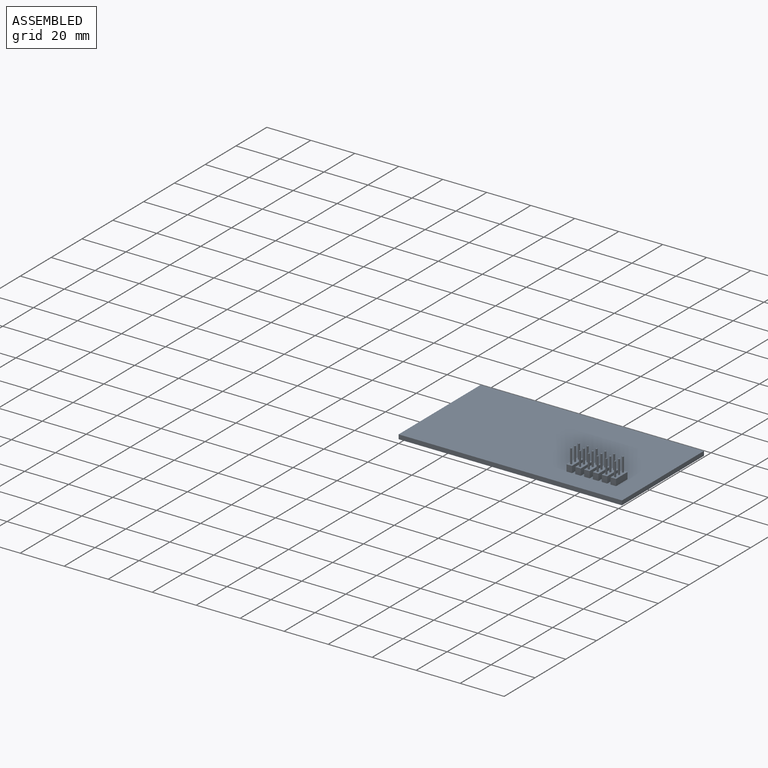
[diagram: assembled view]
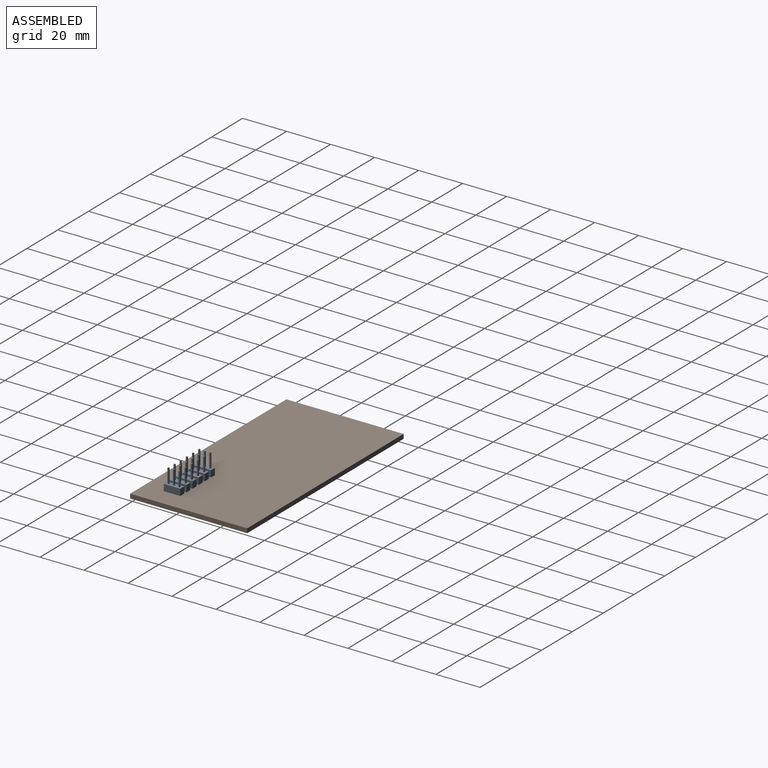
[diagram: assembled view, second angle]
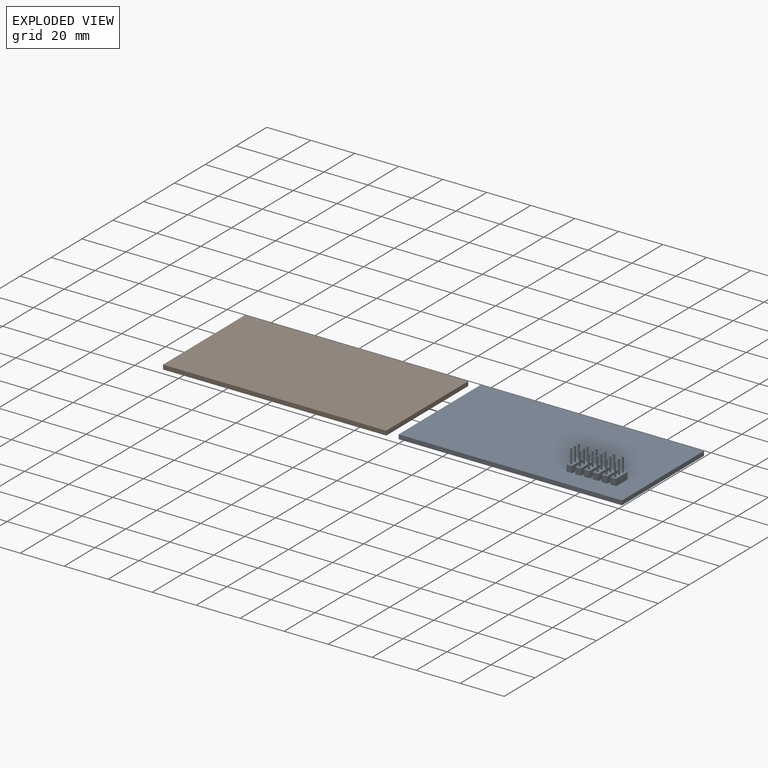
[diagram: exploded view]
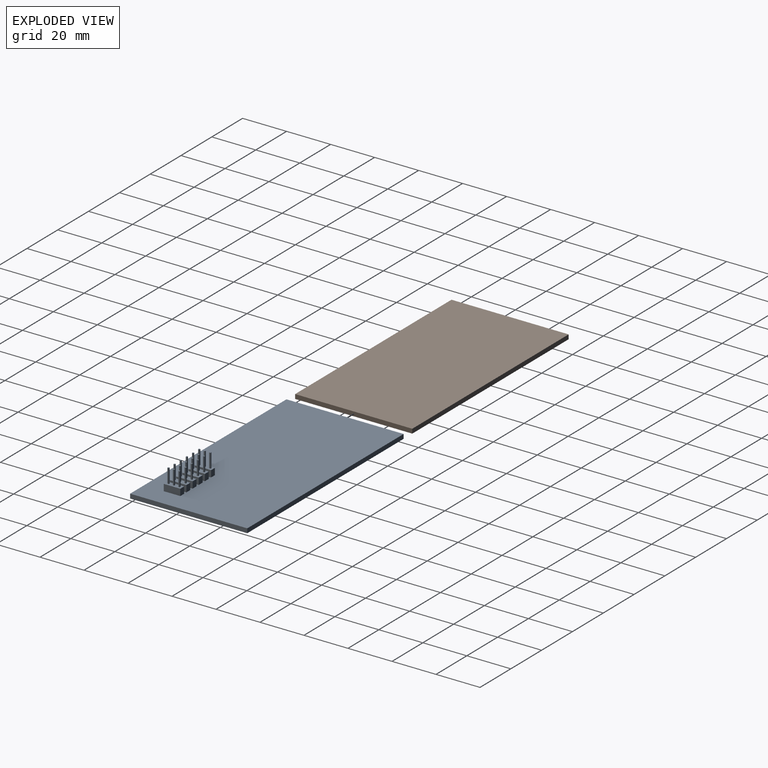
[diagram: exploded view, second angle]
FCSTD DOCUMENT  (FreeCAD 0.21R33771 (Git))
Label: jrobot-pcb-assembly
License: All rights reserved
LicenseURL: http://en.wikipedia.org/wiki/All_rights_reserved
objects: PartDesign::CoordinateSystem×32, App::Link×31, App::DocumentObjectGroup×3, App::Part×2, App::FeaturePython×1, Sketcher::SketchObject×1, PartDesign::Pad×1, PartDesign::Body×1, Spreadsheet::Sheet×1
note: 36 computed .brp shape members not serialized (recipe doc carries the construction recipe); baked Part::Feature solids carry a one-line shape summary decoded from their .brp
EXTERNAL_REF file=standard-parts.FCStd obj=LCS_Dupont_MalePCB_3pin_Origin003
EXTERNAL_REF file=standard-parts.FCStd obj=Part062
EXTERNAL_REF file=standard-parts.FCStd obj=LCS_Dupont_MalePCB_3pin_Origin004
EXTERNAL_REF file=standard-parts.FCStd obj=Part063
EXTERNAL_REF file=standard-parts.FCStd obj=LCS_Dupont_MalePCB_3pin_Origin006
EXTERNAL_REF file=standard-parts.FCStd obj=Part067
EXTERNAL_REF file=standard-parts.FCStd obj=LCS_Dupont_MalePCB_3pin_Origin
EXTERNAL_REF file=standard-parts.FCStd obj=Part051
EXTERNAL_REF file=standard-parts.FCStd obj=LCS_Dupont_MalePCB_3pin_Origin005
EXTERNAL_REF file=standard-parts.FCStd obj=Part066

FEATURE [PartDesign::CoordinateSystem] LCS_Origin
  AttacherType = Attacher::AttachEngine3D
  MapMode = 2
  Support = -> [X_Axis]
FEATURE [App::DocumentObjectGroup] Constraints
FEATURE [App::FeaturePython] Variables  # WARN: FeaturePython — macro-defined, semantics opaque (R4)
  Type = App::PropertyContainer
FEATURE [App::DocumentObjectGroup] Configurations
FEATURE [Sketcher::SketchObject] Sketch
  FullyConstrained = true
  MapMode = 5
  Support = -> [XY_Plane002]
  sketch-geometry (4):
    g0: LineSegment StartX=0 StartY=53.25 StartZ=0 EndX=101.5 EndY=53.25 EndZ=0
    g1: LineSegment StartX=101.5 StartY=53.25 StartZ=0 EndX=101.5 EndY=0 EndZ=0
    g2: LineSegment StartX=101.5 StartY=0 StartZ=0 EndX=0 EndY=0 EndZ=0
    g3: LineSegment StartX=0 StartY=0 StartZ=0 EndX=0 EndY=53.25 EndZ=0
  constraints (12):
    c: Coincident(g0,g1)
    c: Coincident(g1,g2)
    c: Coincident(g2,g3)
    c: Coincident(g3,g0)
    c: Horizontal(g0)
    c: Horizontal(g2)
    c: Vertical(g1)
    c: Vertical(g3)
    c: PointOnObject(g0,g-2)
    c: PointOnObject(g1,g-1)
    c: DistanceY(g1,g1) = 53.25
    c: DistanceX(g0,g0) = 101.5
FEATURE [PartDesign::Pad] Pad  label="PAD_Electronics_uCNCShield_Body"
  Direction = (0,0,1)
  Length = 2
  Length2 = 10
  Profile = -> Sketch
  ReferenceAxis = -> Sketch [N_Axis]
  Type = 0
FEATURE [PartDesign::Body] Body  label="B_Electronics_uCNCShield"
  Group = -> [Sketch,Pad]
  Origin = -> Origin002
  Tip = -> Pad
FEATURE [PartDesign::CoordinateSystem] LCS_Origin001  label="LCS_Electronics_uCNCShield_Origin"
  AttacherType = Attacher::AttachEngine3D
FEATURE [PartDesign::CoordinateSystem] LCS_Electronics_uCNCShield_P2
  AttacherType = Attacher::AttachEngine3D
  Placement = pos=(26.5,1,0) rot=(0,0,1;0rad)
FEATURE [PartDesign::CoordinateSystem] LCS_Electronics_uCNCShield_P3
  AttacherType = Attacher::AttachEngine3D
  Placement = pos=(49.5,1,0) rot=(0,0,1;0rad)
FEATURE [PartDesign::CoordinateSystem] LCS_Electronics_uCNCShield_P4
  AttacherType = Attacher::AttachEngine3D
  Placement = pos=(72.55,1,0) rot=(0,0,1;0rad)
FEATURE [PartDesign::CoordinateSystem] LCS_Electronics_uCNCShield_P5
  AttacherType = Attacher::AttachEngine3D
  Placement = pos=(17.4,49.9,0) rot=(0,0,1;0rad)
FEATURE [PartDesign::CoordinateSystem] LCS_Electronics_uCNCShield_P6
  AttacherType = Attacher::AttachEngine3D
  Placement = pos=(44.2,49.9,0) rot=(0,0,1;0rad)
FEATURE [PartDesign::CoordinateSystem] LCS_Electronics_uCNCShield_P7
  AttacherType = Attacher::AttachEngine3D
  Placement = pos=(66.7,49.9,0) rot=(0,0,1;0rad)
FEATURE [PartDesign::CoordinateSystem] LCS_Electronics_uCNCShield_P1
  AttacherType = Attacher::AttachEngine3D
  Placement = pos=(93.5,52.4,0) rot=(0,0,1;0rad)
  expr: .Placement.Base.y = 49.9 mm + 2.5 mm
FEATURE [PartDesign::CoordinateSystem] LCS_Electronics_uCNCShield_JSERVO0
  AttacherType = Attacher::AttachEngine3D
  Placement = pos=(10,35,2) rot=(0,0,1;0rad)
FEATURE [App::Link] P_Electronics_uCNCShield  label="P_Electronics_uCNCShield001"
  AttachedBy = #LCS_Origin001
  AttachedTo = Parent Assembly#LCS_Origin
  LinkedObject = -> Part
  SolverId = Asm4EE
  expr: Placement = LCS_Origin.Placement * AttachmentOffset * LCS_Origin001.Placement ^ -1
FEATURE [App::Link] P_Dupont_MalePCB_8pin  label="P_P2"
  AttachedBy = #LCS_Dupont_MalePCB_3pin_Origin003
  AttachedTo = P_Electronics_uCNCShield#LCS_Electronics_uCNCShield_P2
  AttachmentOffset = pos=(0,0,0) rot=(-0.707107,-0.707107,0;3.14159rad)
  LinkPlacement = pos=(27.75,2.25,-2e-16) rot=(-0.707107,-0.707107,0;3.14159rad)
  LinkedObject = -> <external standard-parts.FCStd>#Part062
  Placement = pos=(27.75,2.25,-2e-16) rot=(-0.707107,-0.707107,0;3.14159rad)
  SolverId = Asm4EE
  expr: Placement = P_Electronics_uCNCShield.Placement * LCS_Electronics_uCNCShield_P2.Placement * AttachmentOffset * standard_parts#LCS_Dupont_MalePCB_3pin_Origin003.Placement ^ -1
FEATURE [App::Link] P_Dupont_MalePCB_8pin_2  label="P_P3"
  AttachedBy = #LCS_Dupont_MalePCB_3pin_Origin003
  AttachedTo = P_Electronics_uCNCShield#LCS_Electronics_uCNCShield_P3
  AttachmentOffset = pos=(0,0,0) rot=(-0.707107,-0.707107,0;3.14159rad)
  LinkPlacement = pos=(50.75,2.25,-2e-16) rot=(-0.707107,-0.707107,0;3.14159rad)
  LinkedObject = -> <external standard-parts.FCStd>#Part062
  Placement = pos=(50.75,2.25,-2e-16) rot=(-0.707107,-0.707107,0;3.14159rad)
  SolverId = Asm4EE
  expr: Placement = P_Electronics_uCNCShield.Placement * LCS_Electronics_uCNCShield_P3.Placement * AttachmentOffset * standard_parts#LCS_Dupont_MalePCB_3pin_Origin003.Placement ^ -1
FEATURE [App::Link] P_Dupont_MalePCB_8pin_1  label="P_P4"
  AttachedBy = #LCS_Dupont_MalePCB_3pin_Origin003
  AttachedTo = P_Electronics_uCNCShield#LCS_Electronics_uCNCShield_P4
  AttachmentOffset = pos=(0,0,0) rot=(-0.707107,-0.707107,0;3.14159rad)
  LinkPlacement = pos=(73.8,2.25,-2e-16) rot=(-0.707107,-0.707107,0;3.14159rad)
  LinkedObject = -> <external standard-parts.FCStd>#Part062
  Placement = pos=(73.8,2.25,-2e-16) rot=(-0.707107,-0.707107,0;3.14159rad)
  SolverId = Asm4EE
  expr: Placement = P_Electronics_uCNCShield.Placement * LCS_Electronics_uCNCShield_P4.Placement * AttachmentOffset * standard_parts#LCS_Dupont_MalePCB_3pin_Origin003.Placement ^ -1
FEATURE [App::Link] P_Dupont_MalePCB_10pin  label="P_P5"
  AttachedBy = #LCS_Dupont_MalePCB_3pin_Origin004
  AttachedTo = P_Electronics_uCNCShield#LCS_Electronics_uCNCShield_P5
  AttachmentOffset = pos=(0,0,0) rot=(-0.707107,-0.707107,0;3.14159rad)
  LinkPlacement = pos=(18.65,51.15,-2e-16) rot=(-0.707107,-0.707107,0;3.14159rad)
  LinkedObject = -> <external standard-parts.FCStd>#Part063
  Placement = pos=(18.65,51.15,-2e-16) rot=(-0.707107,-0.707107,0;3.14159rad)
  SolverId = Asm4EE
  expr: Placement = P_Electronics_uCNCShield.Placement * LCS_Electronics_uCNCShield_P5.Placement * AttachmentOffset * standard_parts#LCS_Dupont_MalePCB_3pin_Origin004.Placement ^ -1
FEATURE [App::Link] P_Dupont_MalePCB_8pin001  label="P_P6"
  AttachedBy = #LCS_Dupont_MalePCB_3pin_Origin003
  AttachedTo = P_Electronics_uCNCShield#LCS_Electronics_uCNCShield_P6
  AttachmentOffset = pos=(0,0,0) rot=(-0.707107,-0.707107,0;3.14159rad)
  LinkPlacement = pos=(45.45,51.15,-2e-16) rot=(-0.707107,-0.707107,0;3.14159rad)
  LinkedObject = -> <external standard-parts.FCStd>#Part062
  Placement = pos=(45.45,51.15,-2e-16) rot=(-0.707107,-0.707107,0;3.14159rad)
  SolverId = Asm4EE
  expr: Placement = P_Electronics_uCNCShield.Placement * LCS_Electronics_uCNCShield_P6.Placement * AttachmentOffset * standard_parts#LCS_Dupont_MalePCB_3pin_Origin003.Placement ^ -1
FEATURE [App::Link] P_Dupont_MalePCB_1  label="P_P7"
  AttachedBy = #LCS_Dupont_MalePCB_3pin_Origin003
  AttachedTo = P_Electronics_uCNCShield#LCS_Electronics_uCNCShield_P7
  AttachmentOffset = pos=(0,0,0) rot=(-0.707107,-0.707107,0;3.14159rad)
  LinkPlacement = pos=(67.95,51.15,-2e-16) rot=(-0.707107,-0.707107,0;3.14159rad)
  LinkedObject = -> <external standard-parts.FCStd>#Part062
  Placement = pos=(67.95,51.15,-2e-16) rot=(-0.707107,-0.707107,0;3.14159rad)
  SolverId = Asm4EE
  expr: Placement = P_Electronics_uCNCShield.Placement * LCS_Electronics_uCNCShield_P7.Placement * AttachmentOffset * standard_parts#LCS_Dupont_MalePCB_3pin_Origin003.Placement ^ -1
FEATURE [App::Link] P_Dupont_MalePCB_18x2pin  label="P_J1"
  AttachedBy = #LCS_Dupont_MalePCB_3pin_Origin006
  AttachedTo = P_Electronics_uCNCShield#LCS_Electronics_uCNCShield_P1
  AttachmentOffset = pos=(0,0,0) rot=(1,0,0;3.14159rad)
  LinkPlacement = pos=(94.75,51.15,2e-16) rot=(1,0,0;3.14159rad)
  LinkedObject = -> <external standard-parts.FCStd>#Part067
  Placement = pos=(94.75,51.15,2e-16) rot=(1,0,0;3.14159rad)
  SolverId = Asm4EE
  expr: Placement = P_Electronics_uCNCShield.Placement * LCS_Electronics_uCNCShield_P1.Placement * AttachmentOffset * standard_parts#LCS_Dupont_MalePCB_3pin_Origin006.Placement ^ -1
FEATURE [PartDesign::CoordinateSystem] LCS_Electronics_uCNCShield_JSERVO001  label="LCS_Electronics_uCNCShield_JSERVO1"
  AttacherType = Attacher::AttachEngine3D
  Placement = pos=(15,35,2) rot=(0,0,1;0rad)
FEATURE [PartDesign::CoordinateSystem] LCS_Electronics_uCNCShield_JSERVO002  label="LCS_Electronics_uCNCShield_JSERVO2"
  AttacherType = Attacher::AttachEngine3D
  Placement = pos=(20,35,2) rot=(0,0,1;0rad)
FEATURE [App::Link] P_Dupont_MalePCB_3pin  label="P_JSERVO0"
  AttachedBy = #LCS_Dupont_MalePCB_3pin_Origin
  AttachedTo = P_Electronics_uCNCShield#LCS_Electronics_uCNCShield_JSERVO0
  LinkPlacement = pos=(11.25,36.25,2) rot=(0,0,1;0rad)
  LinkedObject = -> <external standard-parts.FCStd>#Part051
  Placement = pos=(11.25,36.25,2) rot=(0,0,1;0rad)
  SolverId = Asm4EE
  expr: Placement = P_Electronics_uCNCShield.Placement * LCS_Electronics_uCNCShield_JSERVO0.Placement * AttachmentOffset * standard_parts#LCS_Dupont_MalePCB_3pin_Origin.Placement ^ -1
FEATURE [App::Link] P_Dupont_MalePCB_3pin_2  label="P_JSERVO1"
  AttachedBy = #LCS_Dupont_MalePCB_3pin_Origin
  AttachedTo = P_Electronics_uCNCShield#LCS_Electronics_uCNCShield_JSERVO001
  LinkPlacement = pos=(16.25,36.25,2) rot=(0,0,1;0rad)
  LinkedObject = -> <external standard-parts.FCStd>#Part051
  Placement = pos=(16.25,36.25,2) rot=(0,0,1;0rad)
  SolverId = Asm4EE
  expr: Placement = P_Electronics_uCNCShield.Placement * LCS_Electronics_uCNCShield_JSERVO001.Placement * AttachmentOffset * standard_parts#LCS_Dupont_MalePCB_3pin_Origin.Placement ^ -1
FEATURE [App::Link] P_Dupont_MalePCB_3pin_1  label="P_JSERVO2"
  AttachedBy = #LCS_Dupont_MalePCB_3pin_Origin
  AttachedTo = P_Electronics_uCNCShield#LCS_Electronics_uCNCShield_JSERVO002
  LinkPlacement = pos=(21.25,36.25,2) rot=(0,0,1;0rad)
  LinkedObject = -> <external standard-parts.FCStd>#Part051
  Placement = pos=(21.25,36.25,2) rot=(0,0,1;0rad)
  SolverId = Asm4EE
  expr: Placement = P_Electronics_uCNCShield.Placement * LCS_Electronics_uCNCShield_JSERVO002.Placement * AttachmentOffset * standard_parts#LCS_Dupont_MalePCB_3pin_Origin.Placement ^ -1
FEATURE [PartDesign::CoordinateSystem] LCS_Electronics_uCNCShield_JLIM0 .. LCS_Electronics_uCNCShield_JLIM5  x6 (patterned run collapsed; names and placements below)
  AttacherType = Attacher::AttachEngine3D
  placements: 6 in arithmetic series — first pos=(70,9,2) rot=(0,0,1;0rad), step (4,0,0), last pos=(90,9,2) rot=(0,0,1;0rad)
FEATURE [App::Link] P_Dupont_MalePCB_3pin001  label="P_JLIM5"
  AttachedBy = #LCS_Dupont_MalePCB_3pin_Origin
  AttachedTo = P_Electronics_uCNCShield#LCS_Electronics_uCNCShield_JLIM5
  LinkPlacement = pos=(91.25,10.25,2) rot=(0,0,1;0rad)
  LinkedObject = -> <external standard-parts.FCStd>#Part051
  Placement = pos=(91.25,10.25,2) rot=(0,0,1;0rad)
  SolverId = Asm4EE
  expr: Placement = P_Electronics_uCNCShield.Placement * LCS_Electronics_uCNCShield_JLIM5.Placement * AttachmentOffset * standard_parts#LCS_Dupont_MalePCB_3pin_Origin.Placement ^ -1
FEATURE [App::Link] P_Dupont_MalePCB_3pin002  label="P_JLIM4"
  AttachedBy = #LCS_Dupont_MalePCB_3pin_Origin
  AttachedTo = P_Electronics_uCNCShield#LCS_Electronics_uCNCShield_JLIM4
  LinkPlacement = pos=(87.25,10.25,2) rot=(0,0,1;0rad)
  LinkedObject = -> <external standard-parts.FCStd>#Part051
  Placement = pos=(87.25,10.25,2) rot=(0,0,1;0rad)
  SolverId = Asm4EE
  expr: Placement = P_Electronics_uCNCShield.Placement * LCS_Electronics_uCNCShield_JLIM4.Placement * AttachmentOffset * standard_parts#LCS_Dupont_MalePCB_3pin_Origin.Placement ^ -1
FEATURE [App::Link] P_Dupont_MalePCB_2  label="P_JLIM3"
  AttachedBy = #LCS_Dupont_MalePCB_3pin_Origin
  AttachedTo = P_Electronics_uCNCShield#LCS_Electronics_uCNCShield_JLIM3
  LinkPlacement = pos=(83.25,10.25,2) rot=(0,0,1;0rad)
  LinkedObject = -> <external standard-parts.FCStd>#Part051
  Placement = pos=(83.25,10.25,2) rot=(0,0,1;0rad)
  SolverId = Asm4EE
  expr: Placement = P_Electronics_uCNCShield.Placement * LCS_Electronics_uCNCShield_JLIM3.Placement * AttachmentOffset * standard_parts#LCS_Dupont_MalePCB_3pin_Origin.Placement ^ -1
FEATURE [App::Link] P_Dupont_MalePCB_3  label="P_JLIM2"
  AttachedBy = #LCS_Dupont_MalePCB_3pin_Origin
  AttachedTo = P_Electronics_uCNCShield#LCS_Electronics_uCNCShield_JLIM2
  LinkPlacement = pos=(79.25,10.25,2) rot=(0,0,1;0rad)
  LinkedObject = -> <external standard-parts.FCStd>#Part051
  Placement = pos=(79.25,10.25,2) rot=(0,0,1;0rad)
  SolverId = Asm4EE
  expr: Placement = P_Electronics_uCNCShield.Placement * LCS_Electronics_uCNCShield_JLIM2.Placement * AttachmentOffset * standard_parts#LCS_Dupont_MalePCB_3pin_Origin.Placement ^ -1
FEATURE [App::Link] P_Dupont_MalePCB_4  label="P_JLIM1"
  AttachedBy = #LCS_Dupont_MalePCB_3pin_Origin
  AttachedTo = P_Electronics_uCNCShield#LCS_Electronics_uCNCShield_JLIM1
  LinkPlacement = pos=(75.25,10.25,2) rot=(0,0,1;0rad)
  LinkedObject = -> <external standard-parts.FCStd>#Part051
  Placement = pos=(75.25,10.25,2) rot=(0,0,1;0rad)
  SolverId = Asm4EE
  expr: Placement = P_Electronics_uCNCShield.Placement * LCS_Electronics_uCNCShield_JLIM1.Placement * AttachmentOffset * standard_parts#LCS_Dupont_MalePCB_3pin_Origin.Placement ^ -1
FEATURE [App::Link] P_Dupont_MalePCB_5  label="P_JLIM0"
  AttachedBy = #LCS_Dupont_MalePCB_3pin_Origin
  AttachedTo = P_Electronics_uCNCShield#LCS_Electronics_uCNCShield_JLIM0
  LinkPlacement = pos=(71.25,10.25,2) rot=(0,0,1;0rad)
  LinkedObject = -> <external standard-parts.FCStd>#Part051
  Placement = pos=(71.25,10.25,2) rot=(0,0,1;0rad)
  SolverId = Asm4EE
  expr: Placement = P_Electronics_uCNCShield.Placement * LCS_Electronics_uCNCShield_JLIM0.Placement * AttachmentOffset * standard_parts#LCS_Dupont_MalePCB_3pin_Origin.Placement ^ -1
FEATURE [PartDesign::CoordinateSystem] LCS_Electronics_uCNCShield_JSTEP0 .. LCS_Electronics_uCNCShield_JSTEP5  x6 (patterned run collapsed; names and placements below)
  AttacherType = Attacher::AttachEngine3D
  placements: 6 in arithmetic series — first pos=(35,20,2) rot=(0,0,1;0rad), step (5,0,0), last pos=(60,20,2) rot=(0,0,1;0rad)
FEATURE [App::Link] P_Dupont_MalePCB_3pin003  label="P_JSTEP0"
  AttachedBy = #LCS_Dupont_MalePCB_3pin_Origin
  AttachedTo = P_Electronics_uCNCShield#LCS_Electronics_uCNCShield_JSTEP0
  LinkPlacement = pos=(36.25,21.25,2) rot=(0,0,1;0rad)
  LinkedObject = -> <external standard-parts.FCStd>#Part051
  Placement = pos=(36.25,21.25,2) rot=(0,0,1;0rad)
  SolverId = Asm4EE
  expr: Placement = P_Electronics_uCNCShield.Placement * LCS_Electronics_uCNCShield_JSTEP0.Placement * AttachmentOffset * standard_parts#LCS_Dupont_MalePCB_3pin_Origin.Placement ^ -1
FEATURE [App::Link] P_Dupont_MalePCB_3pin_3  label="P_JSTEP1"
  AttachedBy = #LCS_Dupont_MalePCB_3pin_Origin
  AttachedTo = P_Electronics_uCNCShield#LCS_Electronics_uCNCShield_JSTEP1
  LinkPlacement = pos=(41.25,21.25,2) rot=(0,0,1;0rad)
  LinkedObject = -> <external standard-parts.FCStd>#Part051
  Placement = pos=(41.25,21.25,2) rot=(0,0,1;0rad)
  SolverId = Asm4EE
  expr: Placement = P_Electronics_uCNCShield.Placement * LCS_Electronics_uCNCShield_JSTEP1.Placement * AttachmentOffset * standard_parts#LCS_Dupont_MalePCB_3pin_Origin.Placement ^ -1
FEATURE [App::Link] P_Dupont_MalePCB_3pin004  label="P_JSTEP2"
  AttachedBy = #LCS_Dupont_MalePCB_3pin_Origin
  AttachedTo = P_Electronics_uCNCShield#LCS_Electronics_uCNCShield_JSTEP2
  LinkPlacement = pos=(46.25,21.25,2) rot=(0,0,1;0rad)
  LinkedObject = -> <external standard-parts.FCStd>#Part051
  Placement = pos=(46.25,21.25,2) rot=(0,0,1;0rad)
  SolverId = Asm4EE
  expr: Placement = P_Electronics_uCNCShield.Placement * LCS_Electronics_uCNCShield_JSTEP2.Placement * AttachmentOffset * standard_parts#LCS_Dupont_MalePCB_3pin_Origin.Placement ^ -1
FEATURE [App::Link] P_Dupont_MalePCB_6  label="P_JSTEP3"
  AttachedBy = #LCS_Dupont_MalePCB_3pin_Origin
  AttachedTo = P_Electronics_uCNCShield#LCS_Electronics_uCNCShield_JSTEP3
  LinkPlacement = pos=(51.25,21.25,2) rot=(0,0,1;0rad)
  LinkedObject = -> <external standard-parts.FCStd>#Part051
  Placement = pos=(51.25,21.25,2) rot=(0,0,1;0rad)
  SolverId = Asm4EE
  expr: Placement = P_Electronics_uCNCShield.Placement * LCS_Electronics_uCNCShield_JSTEP3.Placement * AttachmentOffset * standard_parts#LCS_Dupont_MalePCB_3pin_Origin.Placement ^ -1
FEATURE [App::Link] P_Dupont_MalePCB_7  label="P_JSTEP4"
  AttachedBy = #LCS_Dupont_MalePCB_3pin_Origin
  AttachedTo = P_Electronics_uCNCShield#LCS_Electronics_uCNCShield_JSTEP4
  LinkPlacement = pos=(56.25,21.25,2) rot=(0,0,1;0rad)
  LinkedObject = -> <external standard-parts.FCStd>#Part051
  Placement = pos=(56.25,21.25,2) rot=(0,0,1;0rad)
  SolverId = Asm4EE
  expr: Placement = P_Electronics_uCNCShield.Placement * LCS_Electronics_uCNCShield_JSTEP4.Placement * AttachmentOffset * standard_parts#LCS_Dupont_MalePCB_3pin_Origin.Placement ^ -1
FEATURE [App::Link] P_Dupont_MalePCB_8  label="P_JSTEP5"
  AttachedBy = #LCS_Dupont_MalePCB_3pin_Origin
  AttachedTo = P_Electronics_uCNCShield#LCS_Electronics_uCNCShield_JSTEP5
  LinkPlacement = pos=(61.25,21.25,2) rot=(0,0,1;0rad)
  LinkedObject = -> <external standard-parts.FCStd>#Part051
  Placement = pos=(61.25,21.25,2) rot=(0,0,1;0rad)
  SolverId = Asm4EE
  expr: Placement = P_Electronics_uCNCShield.Placement * LCS_Electronics_uCNCShield_JSTEP5.Placement * AttachmentOffset * standard_parts#LCS_Dupont_MalePCB_3pin_Origin.Placement ^ -1
FEATURE [PartDesign::CoordinateSystem] LCS_Electronics_uCNCShield_JPWR1
  AttacherType = Attacher::AttachEngine3D
  Placement = pos=(2,15,2) rot=(0,0,1;0rad)
FEATURE [PartDesign::CoordinateSystem] LCS_Electronics_uCNCShield_JSWITCH1
  AttacherType = Attacher::AttachEngine3D
  Placement = pos=(2,25,2) rot=(0,0,1;0rad)
FEATURE [PartDesign::CoordinateSystem] LCS_Electronics_uCNCShield_FAN0
  AttacherType = Attacher::AttachEngine3D
  Placement = pos=(10,8,2) rot=(0,0,1;0rad)
FEATURE [PartDesign::CoordinateSystem] LCS_Electronics_uCNCShield_FAN1
  AttacherType = Attacher::AttachEngine3D
  Placement = pos=(15,8,2) rot=(0,0,1;0rad)
FEATURE [PartDesign::CoordinateSystem] LCS_Electronics_uCNCShield_CNC0P12
  AttacherType = Attacher::AttachEngine3D
  Placement = pos=(28,8,2) rot=(0,0,1;0rad)
FEATURE [PartDesign::CoordinateSystem] LCS_Electronics_uCNCShield_CNC1P12
  AttacherType = Attacher::AttachEngine3D
  Placement = pos=(35,8,2) rot=(0,0,1;0rad)
FEATURE [PartDesign::CoordinateSystem] LCS_Electronics_uCNCShield_CNC0P5
  AttacherType = Attacher::AttachEngine3D
  Placement = pos=(10,18,2) rot=(0,0,1;0rad)
FEATURE [PartDesign::CoordinateSystem] LCS_Electronics_uCNCShield_CNC1P5
  AttacherType = Attacher::AttachEngine3D
  Placement = pos=(15,18,2) rot=(0,0,1;0rad)
FEATURE [App::Part] Part  label="P_Electronics_uCNCShield"
  DrawingName = jrobot-pcb-assembly.FCStd
  Group = -> [Body,LCS_Origin001,LCS_Electronics_uCNCShield_P2,LCS_Electronics_uCNCShield_P3,LCS_Electronics_uCNCShield_P4,LCS_Electronics_uCNCShield_P5,LCS_Electronics_uCNCShield_P6,LCS_Electronics_uCNCShield_P7,LCS_Electronics_uCNCShield_P1,LCS_Electronics_uCNCShield_JSERVO0,LCS_Electronics_uCNCShield_JSERVO001,LCS_Electronics_uCNCShield_JSERVO002,LCS_Electronics_uCNCShield_JLIM0,+19 more]
  Origin = -> Origin001
  PartDescription = B_Electronics_uCNCShield
  PartID = jrobot-pcb-assembly
FEATURE [App::DocumentObjectGroup] Parts
  Group = -> [Part]
FEATURE [App::Link] P_Dupont_MalePCB_2pin  label="P_JPWRSWITCH"
  AttachedBy = #LCS_Dupont_MalePCB_3pin_Origin005
  AttachedTo = P_Electronics_uCNCShield#LCS_Electronics_uCNCShield_JPWR1
  LinkPlacement = pos=(3.25,16.25,2) rot=(0,0,1;0rad)
  LinkedObject = -> <external standard-parts.FCStd>#Part066
  Placement = pos=(3.25,16.25,2) rot=(0,0,1;0rad)
  SolverId = Asm4EE
  expr: Placement = P_Electronics_uCNCShield.Placement * LCS_Electronics_uCNCShield_JPWR1.Placement * AttachmentOffset * standard_parts#LCS_Dupont_MalePCB_3pin_Origin005.Placement ^ -1
FEATURE [App::Link] P_Dupont_MalePCB_2pin001  label="P_JPWR1"
  AttachedBy = #LCS_Dupont_MalePCB_3pin_Origin005
  AttachedTo = P_Electronics_uCNCShield#LCS_Electronics_uCNCShield_JSWITCH1
  LinkPlacement = pos=(3.25,26.25,2) rot=(0,0,1;0rad)
  LinkedObject = -> <external standard-parts.FCStd>#Part066
  Placement = pos=(3.25,26.25,2) rot=(0,0,1;0rad)
  SolverId = Asm4EE
  expr: Placement = P_Electronics_uCNCShield.Placement * LCS_Electronics_uCNCShield_JSWITCH1.Placement * AttachmentOffset * standard_parts#LCS_Dupont_MalePCB_3pin_Origin005.Placement ^ -1
FEATURE [App::Link] P_Dupont_MalePCB_2pin002  label="P_JFAN0"
  AttachedBy = #LCS_Dupont_MalePCB_3pin_Origin005
  AttachedTo = P_Electronics_uCNCShield#LCS_Electronics_uCNCShield_FAN0
  LinkPlacement = pos=(11.25,9.25,2) rot=(0,0,1;0rad)
  LinkedObject = -> <external standard-parts.FCStd>#Part066
  Placement = pos=(11.25,9.25,2) rot=(0,0,1;0rad)
  SolverId = Asm4EE
  expr: Placement = P_Electronics_uCNCShield.Placement * LCS_Electronics_uCNCShield_FAN0.Placement * AttachmentOffset * standard_parts#LCS_Dupont_MalePCB_3pin_Origin005.Placement ^ -1
FEATURE [App::Link] P_Dupont_MalePCB_9  label="P_JFAN1"
  AttachedBy = #LCS_Dupont_MalePCB_3pin_Origin005
  AttachedTo = P_Electronics_uCNCShield#LCS_Electronics_uCNCShield_FAN1
  LinkPlacement = pos=(16.25,9.25,2) rot=(0,0,1;0rad)
  LinkedObject = -> <external standard-parts.FCStd>#Part066
  Placement = pos=(16.25,9.25,2) rot=(0,0,1;0rad)
  SolverId = Asm4EE
  expr: Placement = P_Electronics_uCNCShield.Placement * LCS_Electronics_uCNCShield_FAN1.Placement * AttachmentOffset * standard_parts#LCS_Dupont_MalePCB_3pin_Origin005.Placement ^ -1
FEATURE [App::Link] P_Dupont_MalePCB_10  label="P_JCNC0P12"
  AttachedBy = #LCS_Dupont_MalePCB_3pin_Origin005
  AttachedTo = P_Electronics_uCNCShield#LCS_Electronics_uCNCShield_CNC0P12
  LinkPlacement = pos=(29.25,9.25,2) rot=(0,0,1;0rad)
  LinkedObject = -> <external standard-parts.FCStd>#Part066
  Placement = pos=(29.25,9.25,2) rot=(0,0,1;0rad)
  SolverId = Asm4EE
  expr: Placement = P_Electronics_uCNCShield.Placement * LCS_Electronics_uCNCShield_CNC0P12.Placement * AttachmentOffset * standard_parts#LCS_Dupont_MalePCB_3pin_Origin005.Placement ^ -1
FEATURE [App::Link] P_Dupont_MalePCB_11  label="P_JCNC1P12"
  AttachedBy = #LCS_Dupont_MalePCB_3pin_Origin005
  AttachedTo = P_Electronics_uCNCShield#LCS_Electronics_uCNCShield_CNC1P12
  LinkPlacement = pos=(36.25,9.25,2) rot=(0,0,1;0rad)
  LinkedObject = -> <external standard-parts.FCStd>#Part066
  Placement = pos=(36.25,9.25,2) rot=(0,0,1;0rad)
  SolverId = Asm4EE
  expr: Placement = P_Electronics_uCNCShield.Placement * LCS_Electronics_uCNCShield_CNC1P12.Placement * AttachmentOffset * standard_parts#LCS_Dupont_MalePCB_3pin_Origin005.Placement ^ -1
FEATURE [App::Link] P_Dupont_MalePCB_12  label="P_JCNC0P5"
  AttachedBy = #LCS_Dupont_MalePCB_3pin_Origin005
  AttachedTo = P_Electronics_uCNCShield#LCS_Electronics_uCNCShield_CNC0P5
  LinkPlacement = pos=(11.25,19.25,2) rot=(0,0,1;0rad)
  LinkedObject = -> <external standard-parts.FCStd>#Part066
  Placement = pos=(11.25,19.25,2) rot=(0,0,1;0rad)
  SolverId = Asm4EE
  expr: Placement = P_Electronics_uCNCShield.Placement * LCS_Electronics_uCNCShield_CNC0P5.Placement * AttachmentOffset * standard_parts#LCS_Dupont_MalePCB_3pin_Origin005.Placement ^ -1
FEATURE [App::Link] P_Dupont_MalePCB_13  label="P_JCNC1P5"
  AttachedBy = #LCS_Dupont_MalePCB_3pin_Origin005
  AttachedTo = P_Electronics_uCNCShield#LCS_Electronics_uCNCShield_CNC1P5
  LinkPlacement = pos=(16.25,19.25,2) rot=(0,0,1;0rad)
  LinkedObject = -> <external standard-parts.FCStd>#Part066
  Placement = pos=(16.25,19.25,2) rot=(0,0,1;0rad)
  SolverId = Asm4EE
  expr: Placement = P_Electronics_uCNCShield.Placement * LCS_Electronics_uCNCShield_CNC1P5.Placement * AttachmentOffset * standard_parts#LCS_Dupont_MalePCB_3pin_Origin005.Placement ^ -1
FEATURE [App::Part] Assembly
  AssemblyType = Part::Link
  DrawingName = jrobot-pcb-assembly.FCStd
  Group = -> [LCS_Origin,Constraints,Variables,Configurations,P_Electronics_uCNCShield,P_Dupont_MalePCB_8pin,P_Dupont_MalePCB_8pin_2,P_Dupont_MalePCB_8pin_1,P_Dupont_MalePCB_10pin,P_Dupont_MalePCB_8pin001,P_Dupont_MalePCB_1,P_Dupont_MalePCB_18x2pin,P_Dupont_MalePCB_3pin,P_Dupont_MalePCB_3pin_2,P_Dupont_MalePCB_3pin_1,P_Dupont_MalePCB_3pin001,P_Dupont_MalePCB_3pin002,P_Dupont_MalePCB_2,P_Dupont_MalePCB_3,+16 more]
  Origin = -> Origin
  PartID = jrobot-pcb-assembly
  Type = Assembly
FEATURE [Spreadsheet::Sheet] BOM
  cells = A1='BomKey; B1='DrawingName; C1='DrawingRevision; D1='PartID; E1='PartDescription; F1='FileName; G1='FastenerDiameter; H1='FastenerLength; I1='FastenerType; J1='Qty.; A2='jrobot_pcb_assembly#Assembly; B2='jrobot-pcb-assembly.FCStd; D2='jrobot-pcb-assembly; G2='-; H2='-; I2='-; J2=1; A3='jrobot_pcb_assembly#Part; B3='jrobot-pcb-assembly.FCStd; D3='jrobot-pcb-assembly; E3='B_Electronics_uCNCShield; G3='-; H3='-; I3='-; J3=1; A4='standard_parts#Part062; B4='standard-parts.FCStd; D4='standard-parts; E4='B_Dupont_MalePCB_8pin; G4='-; H4='-; I4='-; J4=5; A5='standard_parts#Part063; B5='standard-parts.FCStd; D5='standard-parts; E5='B_Dupont_MalePCB_10pin; G5='-; H5='-; I5='-; J5=1; A6='standard_parts#Part067; B6='standard-parts.FCStd; D6='standard-parts; E6='B_Dupont_MalePCB_18x2pin; G6='-; H6='-; I6='-; J6=1; A7='standard_parts#Part051; B7='standard-parts.FCStd; D7='standard-parts; E7='B_Dupont_MalePCB_3pin; G7='-; H7='-; I7='-; J7=15; A8='standard_parts#Part066; B8='standard-parts.FCStd; D8='standard-parts; E8='B_Dupont_MalePCB_2pin; G8='-; H8='-; I8='-; J8=8

RESOLVED EXTERNAL PARTS (link-assembly join: the EXTERNAL_REF files above that resolve inside this repo's crawl, each included once):
---- part standard-parts.FCStd = doc fcstd_9b47ef122aeb (208734 chars; too large to inline — full recipe in that document) ----
